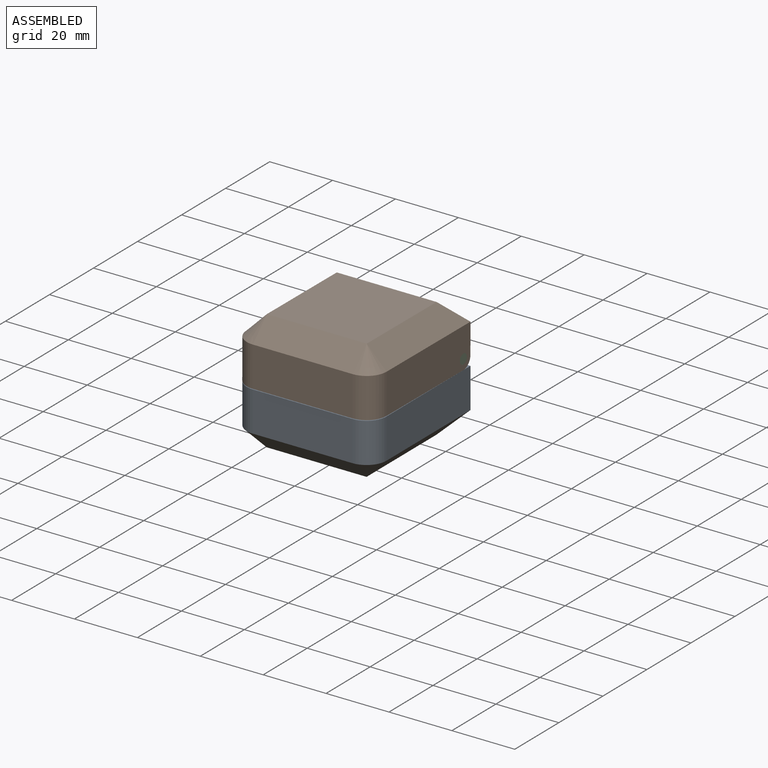
[diagram: assembled view]
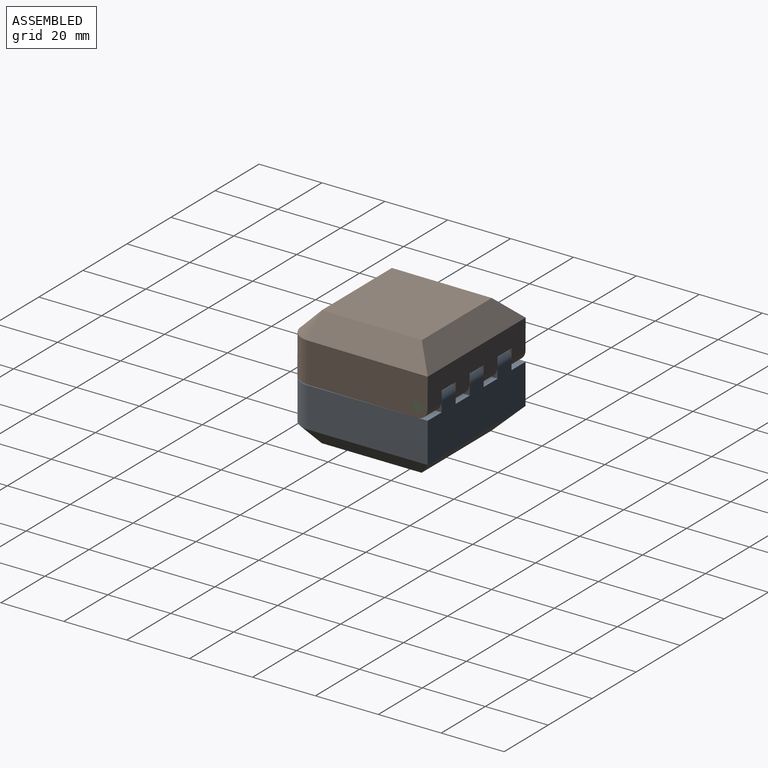
[diagram: assembled view, second angle]
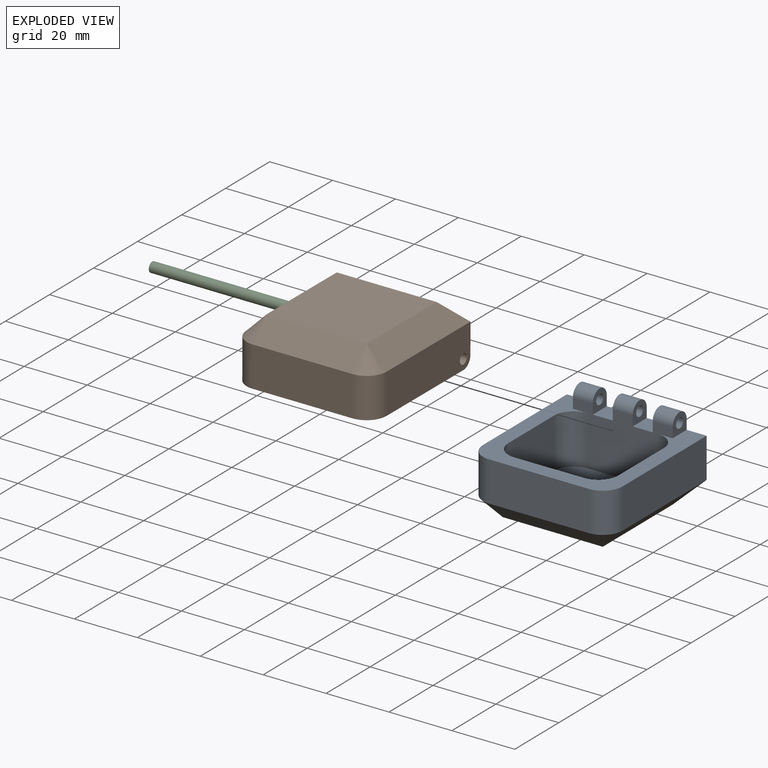
[diagram: exploded view]
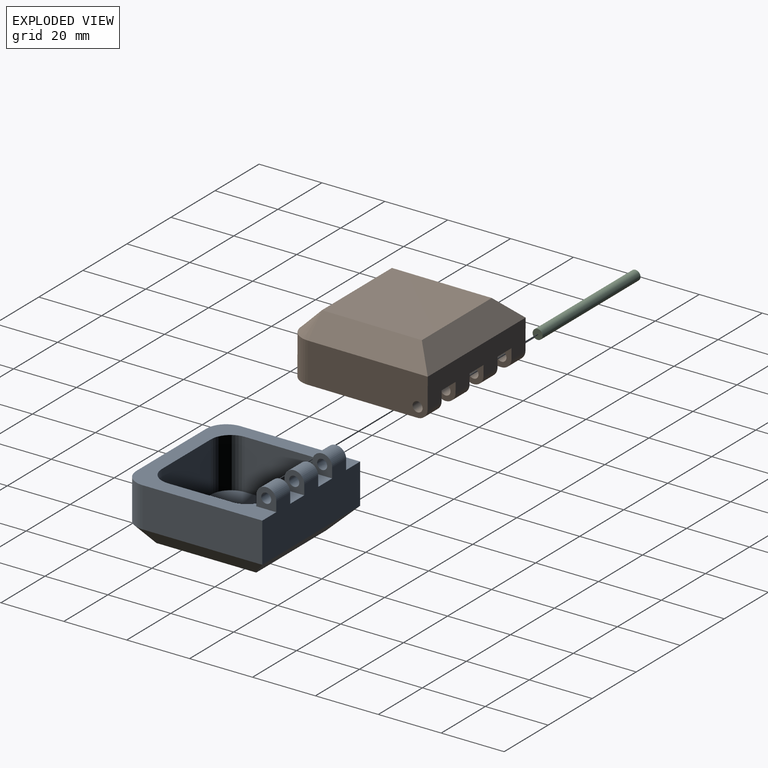
[diagram: exploded view, second angle]
ASSEMBLY  parts=3 mates=4
PART A: 37 faces, bbox 44.5x44.5x25.4 mm
  f0: plane 6.35x6.35mm, normal (0,0,1), area 40.3mm2, adj f4,f8,f15,f18
  f1: plane 44.45x44.45mm, normal (0,0,1), area 627.2mm2, adj f3,f4,f5,f6,f8,f9,f10,f11
  f2: plane 6.35x6.35mm, normal (0,0,1), area 40.3mm2, adj f4,f8,f14,f17
  f3: plane 38.1x12.7mm, normal (1,0,0), area 483.9mm2, adj f1,f4,f26,f27
  f4: plane 44.45x15.88mm, normal (0,1,0), area 625mm2, adj f0,f1,f2,f3,f5,f13,f14,f15
  f5: plane 38.1x12.7mm, normal (-1,0,0), area 483.9mm2, adj f1,f4,f25,f31
  f6: plane 31.75x12.7mm, normal (0,-1,0), area 403.2mm2, adj f1,f25,f26,f30
  f7: plane 31.75x31.75mm, normal (0,0,-1), area 1008.1mm2, adj f27,f29,f30,f31
  f8: plane 31.75x19.05mm, normal (0,-1,0), area 413.3mm2, adj f0,f1,f2,f12,f13,f14,f15,f16
  f9: plane 20.64x15.88mm, normal (1,0,0), area 327.6mm2, adj f1,f12,f33,f34
  f10: plane 22.23x15.88mm, normal (0,1,0), area 352.8mm2, adj f1,f12,f34,f35
  f11: plane 20.64x15.88mm, normal (-1,0,0), area 327.6mm2, adj f1,f12,f35,f36
  f12: plane 34.93x33.34mm, normal (0,0,1), area 1129.7mm2, adj f8,f9,f10,f11,f33,f34,f35,f36
  f13: plane 6.35x6.35mm, normal (-1,0,0), area 28.1mm2, adj f1,f4,f8,f21,f23
  f14: plane 6.35x6.35mm, normal (1,0,0), area 28.1mm2, adj f2,f4,f8,f21,f23
  f15: plane 6.35x6.35mm, normal (-1,0,0), area 28.1mm2, adj f0,f4,f8,f20,f22
  f16: plane 6.35x6.35mm, normal (1,0,0), area 28.1mm2, adj f1,f4,f8,f20,f22
  f17: plane 6.35x6.35mm, normal (-1,0,0), area 28.1mm2, adj f2,f4,f8,f19,f24
  f18: plane 6.35x6.35mm, normal (1,0,0), area 28.1mm2, adj f0,f4,f8,f19,f24
  f19: cylinder r=1.59mm len=6.35mm, axis (1,0,0), area 63.3mm2, adj f17,f18
  f20: cylinder r=1.59mm len=6.35mm, axis (1,0,0), area 63.3mm2, adj f15,f16
  f21: cylinder r=1.59mm len=6.35mm, axis (1,0,0), area 63.3mm2, adj f13,f14
  f22: cylinder r=3.17mm len=6.35mm, axis (1,0,0), area 63.3mm2, adj f4,f8,f15,f16
  f23: cylinder r=3.17mm len=6.35mm, axis (1,0,0), area 63.3mm2, adj f4,f8,f13,f14
  f24: cylinder r=3.17mm len=6.35mm, axis (1,0,0), area 63.3mm2, adj f4,f8,f17,f18
  f25: cylinder r=6.35mm len=12.7mm, axis (0,0,1), area 126.7mm2, adj f1,f5,f6,f32
  f26: cylinder r=6.35mm len=12.7mm, axis (0,0,-1), area 126.7mm2, adj f1,f3,f6,f28
  f27: plane 38.1x6.35mm, normal (0.71,0,-0.71), area 313.6mm2, adj f3,f7,f28,f29
  f28: cone r=6.35mm half-angle=45deg, axis (0,0,1), area 44.8mm2, adj f26,f27,f30
  f29: plane 44.45x6.35mm, normal (0,0.71,-0.71), area 342.1mm2, adj f4,f7,f27,f31
  f30: plane 31.75x6.35mm, normal (0,-0.71,-0.71), area 285.1mm2, adj f6,f7,f28,f32
  f31: plane 38.1x6.35mm, normal (-0.71,0,-0.71), area 313.6mm2, adj f5,f7,f29,f32
  f32: cone r=6.35mm half-angle=45deg, axis (0,0,1), area 44.8mm2, adj f25,f30,f31
  f33: cylinder r=6.35mm len=15.88mm, axis (0,0,1), area 158.3mm2, adj f1,f8,f9,f12
  f34: cylinder r=6.35mm len=15.88mm, axis (0,0,-1), area 158.3mm2, adj f1,f9,f10,f12
  f35: cylinder r=6.35mm len=15.88mm, axis (0,0,1), area 158.3mm2, adj f1,f10,f11,f12
  f36: cylinder r=6.35mm len=15.88mm, axis (0,0,-1), area 158.3mm2, adj f1,f8,f11,f12
PART B: 40 faces, bbox 44.5x44.5x19.1 mm
  f0: plane 44.45x41.28mm, normal (0,0,-1), area 580.6mm2, adj f1,f3,f4,f7,f8,f9,f12,f17
  f1: plane 38.1x12.7mm, normal (1,0,0), area 473.8mm2, adj f0,f2,f21,f27,f31,f35
  f2: plane 44.45x9.53mm, normal (0,1,0), area 362.9mm2, adj f1,f3,f11,f12,f13,f14,f15,f16
  f3: plane 38.1x12.7mm, normal (-1,0,0), area 473.8mm2, adj f0,f2,f20,f23,f29,f32
  f4: plane 31.75x12.7mm, normal (0,-1,0), area 403.2mm2, adj f0,f20,f21,f24
  f5: plane 31.75x31.75mm, normal (0,0,1), area 1008.1mm2, adj f23,f24,f25,f27
  f6: plane 22.23x12.7mm, normal (0,-1,0), area 252mm2, adj f10,f11,f13,f14,f15,f16,f18,f19
  f7: plane 20.64x15.88mm, normal (-1,0,0), area 327.6mm2, adj f0,f10,f36,f37
  f8: plane 22.23x15.88mm, normal (0,1,0), area 352.8mm2, adj f0,f10,f37,f38
  f9: plane 20.64x15.88mm, normal (1,0,0), area 327.6mm2, adj f0,f10,f38,f39
  f10: plane 34.93x33.34mm, normal (0,0,-1), area 1129.7mm2, adj f6,f7,f8,f9,f36,f37,f38,f39
  f11: plane 6.35x6.35mm, normal (1,0,0), area 28.1mm2, adj f2,f6,f13,f30,f34
  f12: plane 8.5x6.35mm, normal (-1,0,0), area 43.9mm2, adj f0,f2,f13,f31,f35,f36
  f13: plane 8.5x6.35mm, normal (0,0,-1), area 43.5mm2, adj f2,f6,f11,f12,f36
  f14: plane 6.35x6.35mm, normal (1,0,0), area 28.1mm2, adj f2,f6,f16,f28,f33
  f15: plane 6.35x6.35mm, normal (-1,0,0), area 28.1mm2, adj f2,f6,f16,f30,f34
  f16: plane 6.35x6.35mm, normal (0,0,-1), area 40.3mm2, adj f2,f6,f14,f15
  f17: plane 8.5x6.35mm, normal (1,0,0), area 43.9mm2, adj f0,f2,f19,f29,f32,f39
  f18: plane 6.35x6.35mm, normal (-1,0,0), area 28.1mm2, adj f2,f6,f19,f28,f33
  f19: plane 8.5x6.35mm, normal (0,0,-1), area 43.5mm2, adj f2,f6,f17,f18,f39
  f20: cylinder r=6.35mm len=12.7mm, axis (0,0,1), area 126.7mm2, adj f0,f3,f4,f22
  f21: cylinder r=6.35mm len=12.7mm, axis (0,0,-1), area 126.7mm2, adj f0,f1,f4,f26
  f22: cone r=6.35mm half-angle=45deg, axis (0,0,-1), area 44.8mm2, adj f20,f23,f24
  f23: plane 38.1x6.35mm, normal (-0.71,0,0.71), area 313.6mm2, adj f3,f5,f22,f25
  f24: plane 31.75x6.35mm, normal (0,-0.71,0.71), area 285.1mm2, adj f4,f5,f22,f26
  f25: plane 44.45x6.35mm, normal (0,0.71,0.71), area 342.1mm2, adj f2,f5,f23,f27
  f26: cone r=6.35mm half-angle=45deg, axis (0,0,-1), area 44.8mm2, adj f21,f24,f27
  f27: plane 38.1x6.35mm, normal (0.71,0,0.71), area 313.6mm2, adj f1,f5,f25,f26
  f28: cylinder r=1.59mm len=6.35mm, axis (1,0,0), area 63.3mm2, adj f14,f18
  f29: cylinder r=1.59mm len=6.35mm, axis (1,0,0), area 63.3mm2, adj f3,f17
  f30: cylinder r=1.59mm len=6.35mm, axis (1,0,0), area 63.3mm2, adj f11,f15
  f31: cylinder r=1.59mm len=6.35mm, axis (1,0,0), area 63.3mm2, adj f1,f12
  f32: cylinder r=3.17mm len=6.35mm, axis (-1,0,0), area 31.7mm2, adj f0,f2,f3,f17
  f33: cylinder r=3.17mm len=6.35mm, axis (-1,0,0), area 63.3mm2, adj f2,f6,f14,f18
  f34: cylinder r=3.17mm len=6.35mm, axis (-1,0,0), area 63.3mm2, adj f2,f6,f11,f15
  f35: cylinder r=3.17mm len=6.35mm, axis (-1,0,0), area 31.7mm2, adj f0,f1,f2,f12
  f36: cylinder r=6.35mm len=15.88mm, axis (0,0,-1), area 124.2mm2, adj f0,f6,f7,f10,f12,f13
  f37: cylinder r=6.35mm len=15.88mm, axis (0,0,1), area 158.3mm2, adj f0,f7,f8,f10
  f38: cylinder r=6.35mm len=15.88mm, axis (0,0,-1), area 158.3mm2, adj f0,f8,f9,f10
  f39: cylinder r=6.35mm len=15.88mm, axis (0,0,1), area 124.2mm2, adj f0,f6,f9,f10,f17,f19
PART C: 3 faces, bbox 3.2x3.2x44.5 mm
  f0: cylinder r=1.59mm len=44.45mm, axis (0,0,-1), area 443.4mm2, adj f1,f2
  f1: plane 3.18x3.18mm, normal (0,0,1), area 7.9mm2, adj f0
  f2: plane 3.18x3.18mm, normal (0,0,-1), area 7.9mm2, adj f0
PLACE A t=(-22.42,9.31,5.54)mm fixed
PLACE B rot(axis=(-1,0,0),0.3deg) t=(-22.42,9.28,24.68)mm
PLACE C rot(axis=(0,1,0),90deg) t=(-44.64,28.34,27.76)mm
MATE cylindrical A.f19 <-> B.f28  axis (1,0,0) through (-6.54,28.34,27.76)mm
MATE cylindrical C.f0 <-> B.f28  axis (-1,0,0) through (-22.42,28.34,27.76)mm
MATE planar B.f1 <-> A.f3  axis (1,0,0) through (-0.19,12.13,31.09)mm
MATE planar C.f0 <-> B.f1  axis (1,0,0) through (-0.19,28.34,27.76)mm
